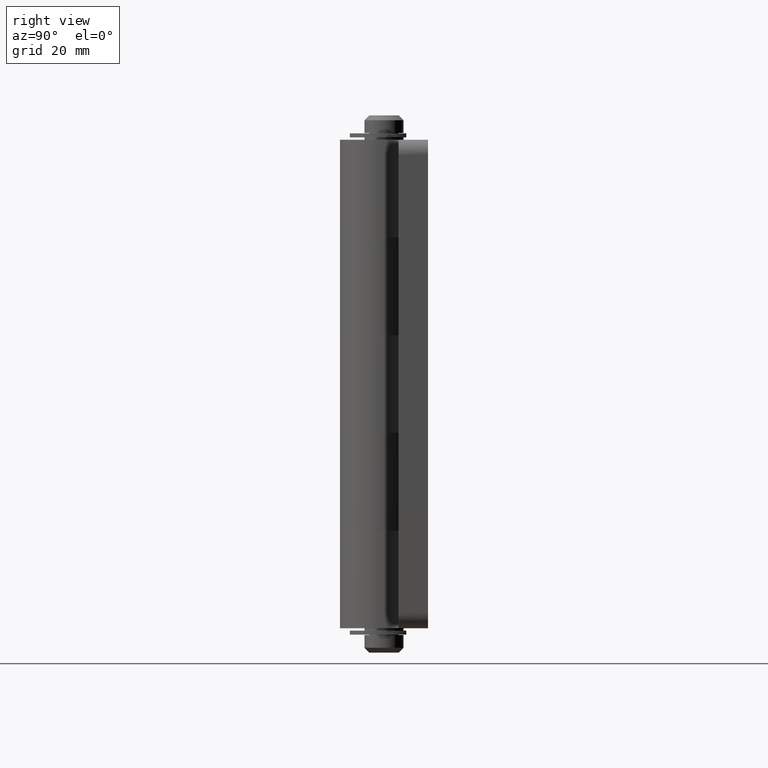
[diagram: clean part render]
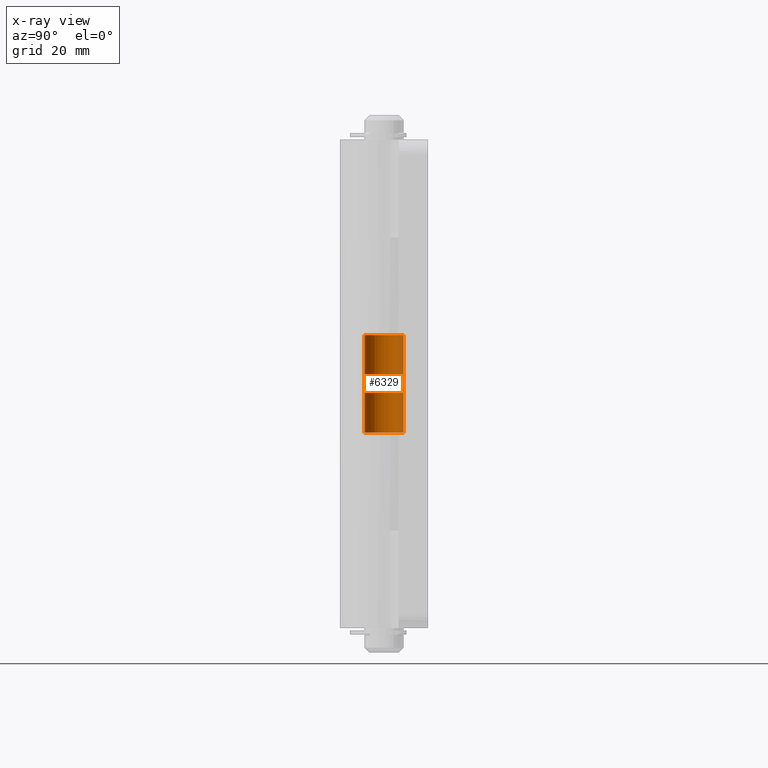
[diagram: x-ray — body ghosted, one internal face saturated and labeled with its STEP entity id]
A machine part, right view, then the same camera in x-ray: the body is ghosted and one INTERNAL B-rep face — a face not visible from any outside direction — is saturated and labeled: STEP entity #6329.
In plain terms, the highlighted face is a freeform B-spline surface patch.
Its self-contained STEP definition (entity closure, byte-faithful):
#6231=CARTESIAN_POINT('',(0.244194158139428,-3.992539193687467,60.500000000000007));
#6232=CARTESIAN_POINT('',(-3.748345035548039,-4.236733351826894,60.500000000000000));
#6233=CARTESIAN_POINT('',(-3.992539193687467,-0.244194158139428,60.500000000000007));
#6234=CARTESIAN_POINT('',(-4.236733351826894,3.748345035548039,60.500000000000000));
#6235=CARTESIAN_POINT('',(-0.244194158139428,3.992539193687467,60.500000000000007));
#6236=CARTESIAN_POINT('',(0.244194158139428,-3.992539193687467,39.487499999999997));
#6237=CARTESIAN_POINT('',(-3.748345035548039,-4.236733351826894,39.487500000000004));
#6238=CARTESIAN_POINT('',(-3.992539193687467,-0.244194158139428,39.487499999999997));
#6239=CARTESIAN_POINT('',(-4.236733351826894,3.748345035548039,39.487500000000004));
#6240=CARTESIAN_POINT('',(-0.244194158139428,3.992539193687467,39.487499999999997));
#6248=(BOUNDED_SURFACE()B_SPLINE_SURFACE(2,1,((#6231,#6236),(#6232,#6237),(#6233,#6238),(#6234,#6239),(#6235,#6240)),.UNSPECIFIED.,.F.,.F.,.U.)B_SPLINE_SURFACE_WITH_KNOTS((3,2,3),(2,2),(0.0,6.627416997969518,13.254833995939039),(0.0,21.012500000000010),.UNSPECIFIED.)GEOMETRIC_REPRESENTATION_ITEM()RATIONAL_B_SPLINE_SURFACE(((1.0,1.0),(0.707106781186548,0.707106781186548),(1.0,1.0),(0.707106781186548,0.707106781186548),(1.0,1.0)))REPRESENTATION_ITEM('')SURFACE());
#6249=CARTESIAN_POINT('',(0.244194158265193,-3.992539193679775,60.0));
#6250=VERTEX_POINT('',#6249);
#6251=CARTESIAN_POINT('',(-4.0,0.0,60.0));
#6252=VERTEX_POINT('',#6251);
#6253=CARTESIAN_POINT('',(0.244194158265193,-3.992539193679776,60.000000000000007));
#6254=CARTESIAN_POINT('',(0.122211053257415,-4.000000000000000,60.0));
#6255=CARTESIAN_POINT('',(0.0,-4.0,60.0));
#6256=CARTESIAN_POINT('',(-4.000000000000000,-4.000000000000000,60.0));
#6257=CARTESIAN_POINT('',(-4.0,0.0,60.0));
#6265=(BOUNDED_CURVE()B_SPLINE_CURVE(2,(#6253,#6254,#6255,#6256,#6257),.UNSPECIFIED.,.F.,.U.)B_SPLINE_CURVE_WITH_KNOTS((3,2,3),(0.239332962236533,0.250000000000000,0.500000000000000),.UNSPECIFIED.)CURVE()GEOMETRIC_REPRESENTATION_ITEM()RATIONAL_B_SPLINE_CURVE((0.976072041661553,0.987502787897014,1.0,0.707106781186548,1.0))REPRESENTATION_ITEM(''));
#6266=EDGE_CURVE('',#6250,#6252,#6265,.T.);
#6267=ORIENTED_EDGE('',*,*,#6266,.F.);
#6268=CARTESIAN_POINT('',(0.244194158265193,-3.992539193679775,40.000000000000007));
#6269=VERTEX_POINT('',#6268);
#6270=CARTESIAN_POINT('',(0.244194158265193,-3.992539193679775,60.0));
#6271=CARTESIAN_POINT('',(0.244194158265193,-3.992539193679775,40.000000000000007));
#6272=QUASI_UNIFORM_CURVE('',1,(#6270,#6271),.UNSPECIFIED.,.F.,.U.);
#6273=EDGE_CURVE('',#6250,#6269,#6272,.T.);
#6274=ORIENTED_EDGE('',*,*,#6273,.T.);
#6275=CARTESIAN_POINT('',(-4.0,0.0,40.0));
#6276=VERTEX_POINT('',#6275);
#6277=CARTESIAN_POINT('',(0.244194158265193,-3.992539193679776,40.000000000000007));
#6278=CARTESIAN_POINT('',(0.122211053257415,-4.000000000000000,40.0));
#6279=CARTESIAN_POINT('',(0.0,-4.0,40.0));
#6280=CARTESIAN_POINT('',(-4.000000000000000,-4.000000000000000,39.999999999999993));
#6281=CARTESIAN_POINT('',(-4.0,0.0,40.0));
#6289=(BOUNDED_CURVE()B_SPLINE_CURVE(2,(#6277,#6278,#6279,#6280,#6281),.UNSPECIFIED.,.F.,.U.)B_SPLINE_CURVE_WITH_KNOTS((3,2,3),(0.239332962236533,0.250000000000000,0.500000000000000),.UNSPECIFIED.)CURVE()GEOMETRIC_REPRESENTATION_ITEM()RATIONAL_B_SPLINE_CURVE((0.976072041661553,0.987502787897014,1.0,0.707106781186548,1.0))REPRESENTATION_ITEM(''));
#6290=EDGE_CURVE('',#6269,#6276,#6289,.T.);
#6291=ORIENTED_EDGE('',*,*,#6290,.T.);
#6292=CARTESIAN_POINT('',(-0.244194158265194,3.992539193679775,40.0));
#6293=VERTEX_POINT('',#6292);
#6294=CARTESIAN_POINT('',(-4.0,0.0,40.0));
#6295=CARTESIAN_POINT('',(-4.000000000000001,3.762824267504027,39.999999999999993));
#6296=CARTESIAN_POINT('',(-0.244194158265194,3.992539193679775,40.000000000000007));
#6304=(BOUNDED_CURVE()B_SPLINE_CURVE(2,(#6294,#6295,#6296),.UNSPECIFIED.,.F.,.U.)B_SPLINE_CURVE_WITH_KNOTS((3,3),(0.500000000000000,0.739332962236533),.UNSPECIFIED.)CURVE()GEOMETRIC_REPRESENTATION_ITEM()RATIONAL_B_SPLINE_CURVE((1.0,0.719603993289534,0.976072041661553))REPRESENTATION_ITEM(''));
#6305=EDGE_CURVE('',#6276,#6293,#6304,.T.);
#6306=ORIENTED_EDGE('',*,*,#6305,.T.);
#6307=CARTESIAN_POINT('',(-0.244194158265194,3.992539193679775,59.999999999999993));
#6308=VERTEX_POINT('',#6307);
#6309=CARTESIAN_POINT('',(-0.244194158265194,3.992539193679775,59.999999999999993));
#6310=CARTESIAN_POINT('',(-0.244194158265194,3.992539193679775,40.0));
#6311=QUASI_UNIFORM_CURVE('',1,(#6309,#6310),.UNSPECIFIED.,.F.,.U.);
#6312=EDGE_CURVE('',#6308,#6293,#6311,.T.);
#6313=ORIENTED_EDGE('',*,*,#6312,.F.);
#6314=CARTESIAN_POINT('',(-4.0,0.0,60.0));
#6315=CARTESIAN_POINT('',(-4.000000000000001,3.762824267504027,60.0));
#6316=CARTESIAN_POINT('',(-0.244194158265194,3.992539193679775,60.0));
#6324=(BOUNDED_CURVE()B_SPLINE_CURVE(2,(#6314,#6315,#6316),.UNSPECIFIED.,.F.,.U.)B_SPLINE_CURVE_WITH_KNOTS((3,3),(0.500000000000000,0.739332962236533),.UNSPECIFIED.)CURVE()GEOMETRIC_REPRESENTATION_ITEM()RATIONAL_B_SPLINE_CURVE((1.0,0.719603993289534,0.976072041661553))REPRESENTATION_ITEM(''));
#6325=EDGE_CURVE('',#6252,#6308,#6324,.T.);
#6326=ORIENTED_EDGE('',*,*,#6325,.F.);
#6327=EDGE_LOOP('',(#6267,#6274,#6291,#6306,#6313,#6326));
#6328=FACE_OUTER_BOUND('',#6327,.T.);
#6329=ADVANCED_FACE('',(#6328),#6248,.F.);